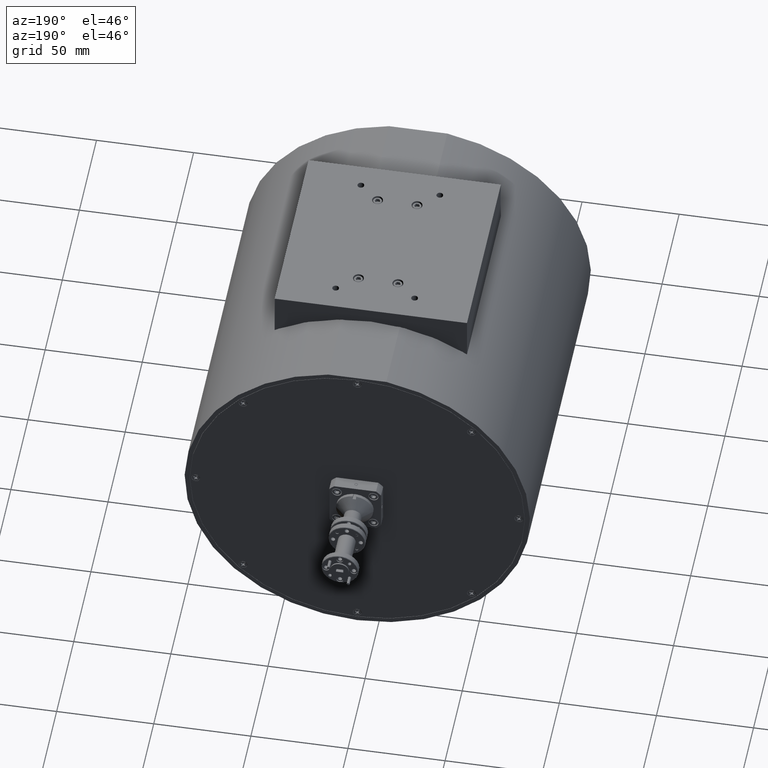
[diagram: clean part render]
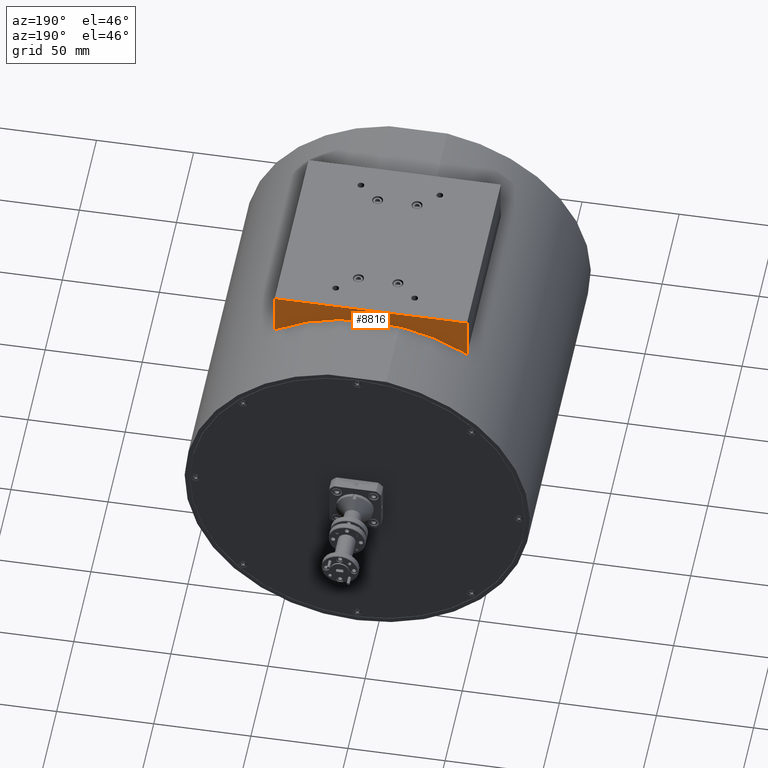
[diagram: same view with one face highlighted and labeled with its STEP entity id]
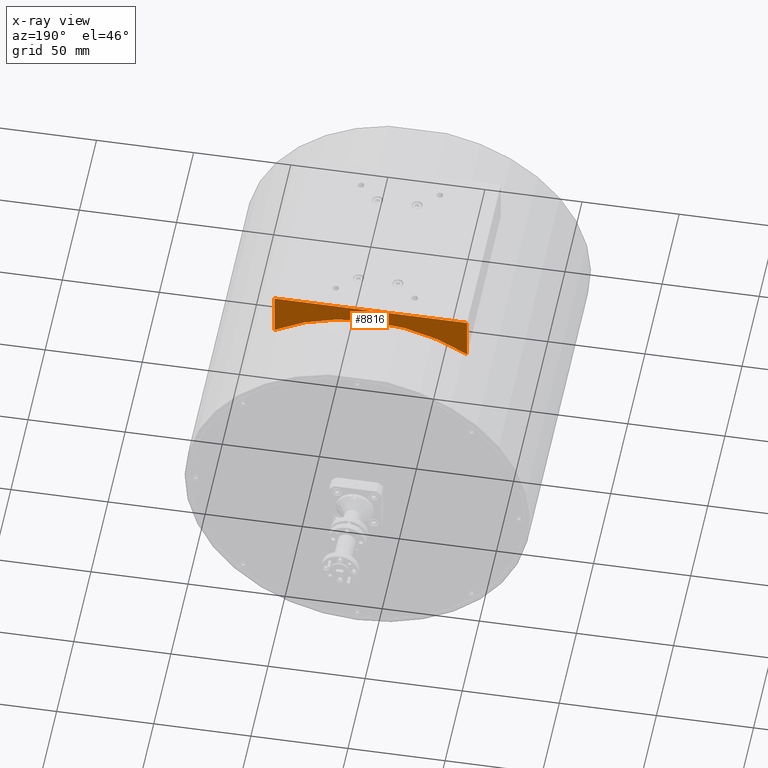
[diagram: x-ray of the same camera — body ghosted, the highlighted face saturated]
A machine part, auxiliary view. The second image highlights one B-rep face of the part: STEP entity #8816.
The next image is the same camera in x-ray: the body ghosted, the highlighted face saturated — about 0% of this face is hidden behind the body in this view.
In plain terms, the highlighted planar face has unit normal (-0, 1, 0).
Its self-contained STEP definition (entity closure, byte-faithful):
#817 = DIRECTION ( 'NONE',  ( -6.245004513516495679E-17, 1.000000000000000000, 1.803158653138880199E-16 ) ) ;
#1280 = VECTOR ( 'NONE', #9110, 39.37007874015748143 ) ;
#1492 = VECTOR ( 'NONE', #7467, 39.37007874015748143 ) ;
#1937 = VECTOR ( 'NONE', #5889, 39.37007874015748143 ) ;
#2629 = CARTESIAN_POINT ( 'NONE',  ( 0.3792383270279712781, 2.994377155374182031, 4.605178668100231576 ) ) ;
#3302 = EDGE_LOOP ( 'NONE', ( #11399, #27525, #38048, #34396 ) ) ;
#4387 = FACE_OUTER_BOUND ( 'NONE', #3302, .T. ) ;
#5889 = DIRECTION ( 'NONE',  ( 1.247238774109135192E-16, 1.602807691679004676E-16, 1.000000000000000000 ) ) ;
#7467 = DIRECTION ( 'NONE',  ( 1.000000000000000000, 6.245004513516493214E-17, 1.108240629956715201E-16 ) ) ;
#8816 = ADVANCED_FACE ( 'NONE', ( #4387 ), #34993, .T. ) ;
#9110 = DIRECTION ( 'NONE',  ( -1.247238774109135192E-16, -1.602807691679004676E-16, -1.000000000000000000 ) ) ;
#11399 = ORIENTED_EDGE ( 'NONE', *, *, #23920, .T. ) ;
#12624 = AXIS2_PLACEMENT_3D ( 'NONE', #42023, #31954, #21449 ) ;
#14406 = CARTESIAN_POINT ( 'NONE',  ( -3.520761672972044565, 2.994377155374182031, 3.705178668100232109 ) ) ;
#15592 = CARTESIAN_POINT ( 'NONE',  ( 0.3792383270279712781, 2.994377155374182031, 4.605178668100231576 ) ) ;
#17254 = VERTEX_POINT ( 'NONE', #14406 ) ;
#17557 = EDGE_CURVE ( 'NONE', #17254, #27624, #43189, .T. ) ;
#19237 = VERTEX_POINT ( 'NONE', #20121 ) ;
#20121 = CARTESIAN_POINT ( 'NONE',  ( 0.3792383270279696683, 2.994377155374182031, 3.705178668100232553 ) ) ;
#20499 = EDGE_CURVE ( 'NONE', #19237, #17254, #26941, .T. ) ;
#21449 = DIRECTION ( 'NONE',  ( 1.000000000000000000, 0.0000000000000000000, 1.170791997284680046E-16 ) ) ;
#23920 = EDGE_CURVE ( 'NONE', #27624, #28975, #27179, .T. ) ;
#24509 = DIRECTION ( 'NONE',  ( 1.000000000000000000, 6.245004513516493214E-17, 1.108240629956715201E-16 ) ) ;
#26941 = CIRCLE ( 'NONE', #12624, 3.500000000000012434 ) ;
#27179 = LINE ( 'NONE', #40799, #1492 ) ;
#27525 = ORIENTED_EDGE ( 'NONE', *, *, #37739, .T. ) ;
#27624 = VERTEX_POINT ( 'NONE', #29008 ) ;
#28615 = AXIS2_PLACEMENT_3D ( 'NONE', #34117, #817, #24509 ) ;
#28975 = VERTEX_POINT ( 'NONE', #15592 ) ;
#29008 = CARTESIAN_POINT ( 'NONE',  ( -3.520761672972044565, 2.994377155374182031, 4.605178668100231576 ) ) ;
#29676 = LINE ( 'NONE', #2629, #1280 ) ;
#31954 = DIRECTION ( 'NONE',  ( -5.551115123125793795E-17, -1.000000000000000000, -1.803158653138880199E-16 ) ) ;
#33152 = CARTESIAN_POINT ( 'NONE',  ( -3.520761672972044565, 2.994377155374182031, 4.605178668100231576 ) ) ;
#34117 = CARTESIAN_POINT ( 'NONE',  ( -1.570761672972035949, 2.994377155374182031, 0.7987203422335082958 ) ) ;
#34396 = ORIENTED_EDGE ( 'NONE', *, *, #17557, .T. ) ;
#34993 = PLANE ( 'NONE',  #28615 ) ;
#37739 = EDGE_CURVE ( 'NONE', #28975, #19237, #29676, .T. ) ;
#38048 = ORIENTED_EDGE ( 'NONE', *, *, #20499, .T. ) ;
#40799 = CARTESIAN_POINT ( 'NONE',  ( -1.570761672972035727, 2.994377155374182031, 4.605178668100231576 ) ) ;
#42023 = CARTESIAN_POINT ( 'NONE',  ( -1.570761672972035949, 2.994377155374182031, 0.7987203422335082958 ) ) ;
#43189 = LINE ( 'NONE', #33152, #1937 ) ;